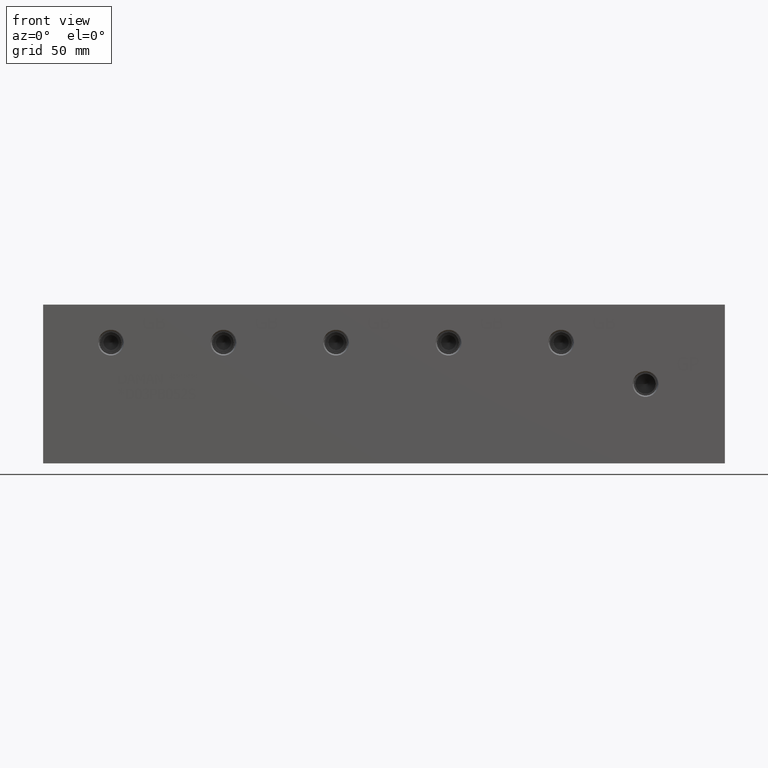
[diagram: clean part render]
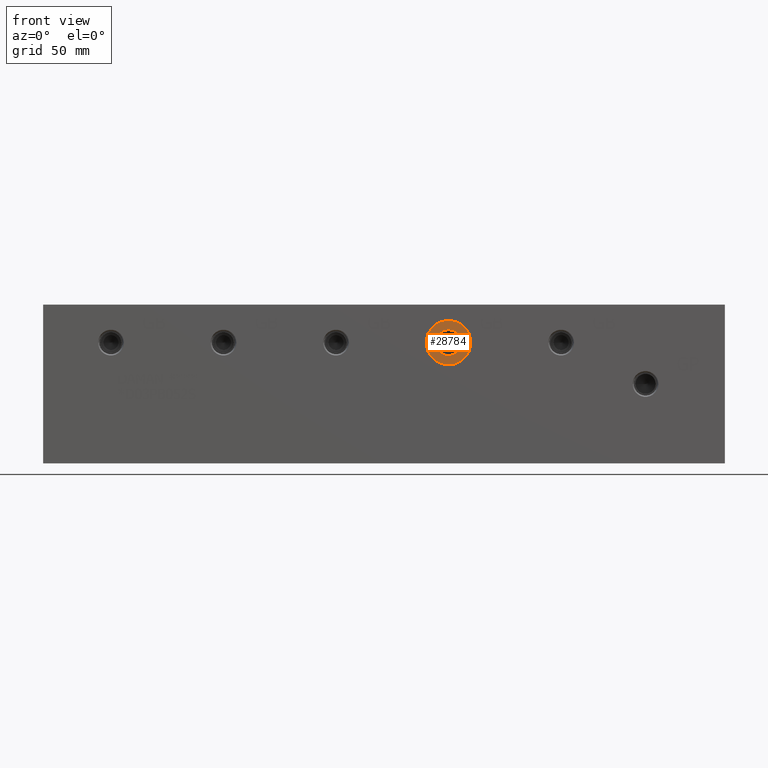
[diagram: same view with one face highlighted and labeled with its STEP entity id]
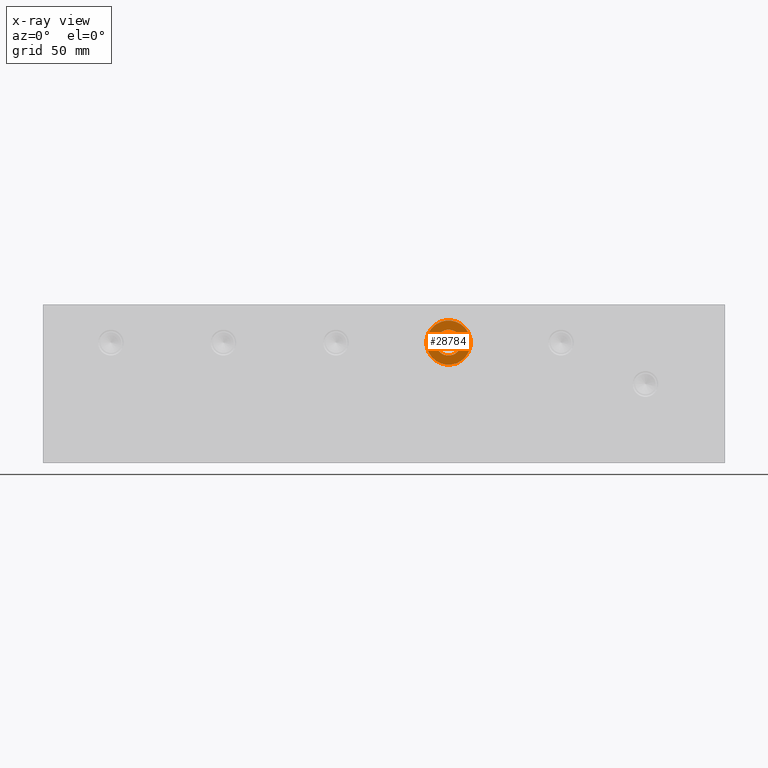
[diagram: x-ray of the same camera — body ghosted, the highlighted face saturated]
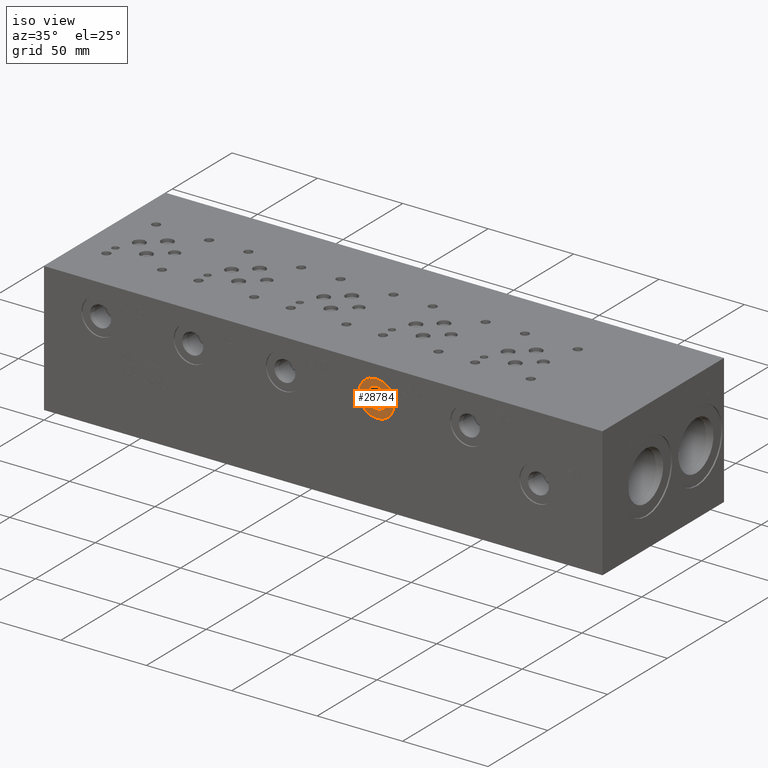
[diagram: same view with one face highlighted and labeled with its STEP entity id]
A machine part, front view. The second image highlights one B-rep face of the part: STEP entity #28784.
The next image is the same camera in x-ray: the body ghosted, the highlighted face saturated — about 0% of this face is hidden behind the body in this view.
A second angle (iso view) of the same face is appended — the face is thin or edge-on in the first view.
In plain terms, the highlighted planar face has unit normal (0, 1, 0).
Its self-contained STEP definition (entity closure, byte-faithful):
#709=CIRCLE('',#30210,10.6426);
#710=CIRCLE('',#30211,10.6426);
#711=CIRCLE('',#30213,6.19759999999999);
#712=CIRCLE('',#30214,6.19759999999999);
#1277=FACE_BOUND('',#5000,.T.);
#2033=PLANE('',#30212);
#3329=FACE_OUTER_BOUND('',#4999,.T.);
#4999=EDGE_LOOP('',(#24624,#24625));
#5000=EDGE_LOOP('',(#24626,#24627));
#13444=VERTEX_POINT('',#49794);
#13445=VERTEX_POINT('',#49796);
#13446=VERTEX_POINT('',#49800);
#13447=VERTEX_POINT('',#49801);
#17314=EDGE_CURVE('',#13444,#13445,#709,.T.);
#17315=EDGE_CURVE('',#13445,#13444,#710,.T.);
#17316=EDGE_CURVE('',#13446,#13447,#711,.T.);
#17317=EDGE_CURVE('',#13447,#13446,#712,.T.);
#24624=ORIENTED_EDGE('',*,*,#17315,.F.);
#24625=ORIENTED_EDGE('',*,*,#17314,.F.);
#24626=ORIENTED_EDGE('',*,*,#17316,.T.);
#24627=ORIENTED_EDGE('',*,*,#17317,.T.);
#28784=ADVANCED_FACE('',(#3329,#1277),#2033,.F.);
#30210=AXIS2_PLACEMENT_3D('',#49797,#35361,#35362);
#30211=AXIS2_PLACEMENT_3D('',#49798,#35363,#35364);
#30212=AXIS2_PLACEMENT_3D('',#49799,#35365,#35366);
#30213=AXIS2_PLACEMENT_3D('',#49802,#35367,#35368);
#30214=AXIS2_PLACEMENT_3D('',#49803,#35369,#35370);
#35361=DIRECTION('center_axis',(0.,1.,0.));
#35362=DIRECTION('ref_axis',(1.,0.,0.));
#35363=DIRECTION('center_axis',(0.,1.,0.));
#35364=DIRECTION('ref_axis',(1.,0.,0.));
#35365=DIRECTION('center_axis',(0.,1.,0.));
#35366=DIRECTION('ref_axis',(0.,0.,1.));
#35367=DIRECTION('center_axis',(0.,1.,0.));
#35368=DIRECTION('ref_axis',(1.,0.,0.));
#35369=DIRECTION('center_axis',(0.,1.,0.));
#35370=DIRECTION('ref_axis',(1.,0.,0.));
#49794=CARTESIAN_POINT('',(183.8198,0.7874,57.9374));
#49796=CARTESIAN_POINT('',(205.105,0.7874,57.9374));
#49797=CARTESIAN_POINT('Origin',(194.4624,0.7874,57.9374));
#49798=CARTESIAN_POINT('Origin',(194.4624,0.7874,57.9374));
#49799=CARTESIAN_POINT('Origin',(200.66,0.7874,57.9374));
#49800=CARTESIAN_POINT('',(200.66,0.7874,57.9374));
#49801=CARTESIAN_POINT('',(188.2648,0.787400000000004,57.9374));
#49802=CARTESIAN_POINT('Origin',(194.4624,0.7874,57.9374));
#49803=CARTESIAN_POINT('Origin',(194.4624,0.7874,57.9374));